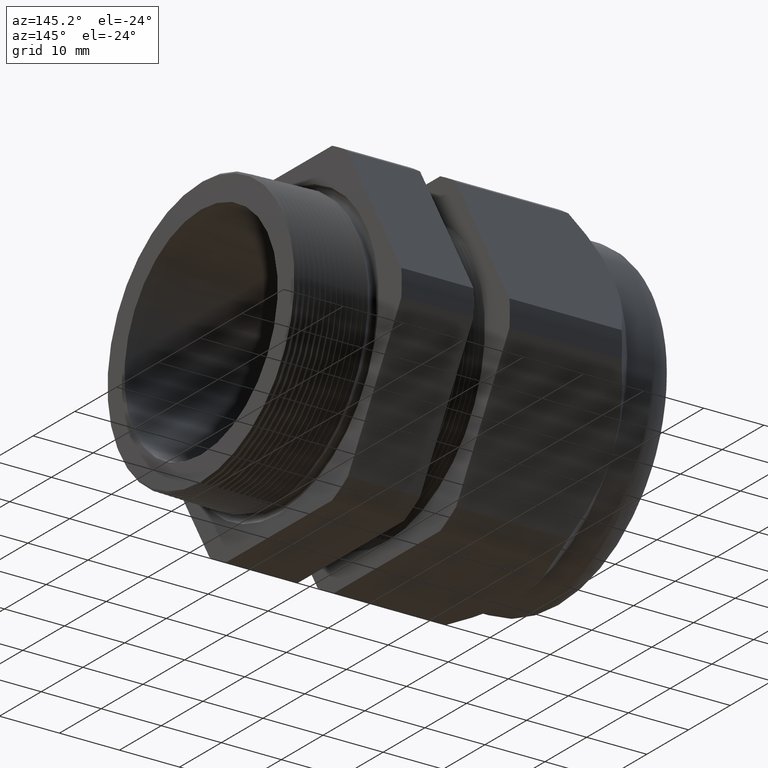
[diagram: clean part render]
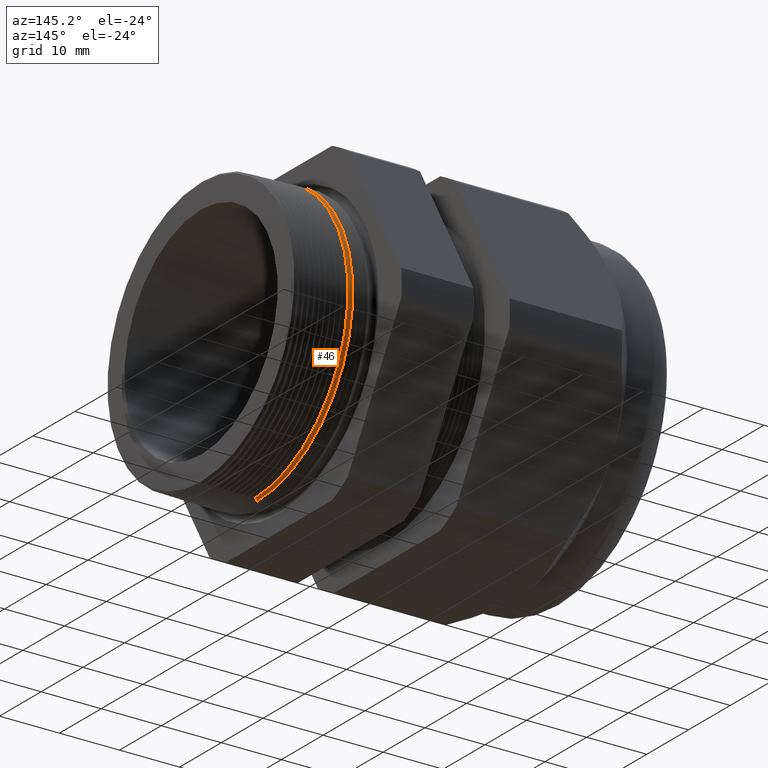
[diagram: same view with one face highlighted and labeled with its STEP entity id]
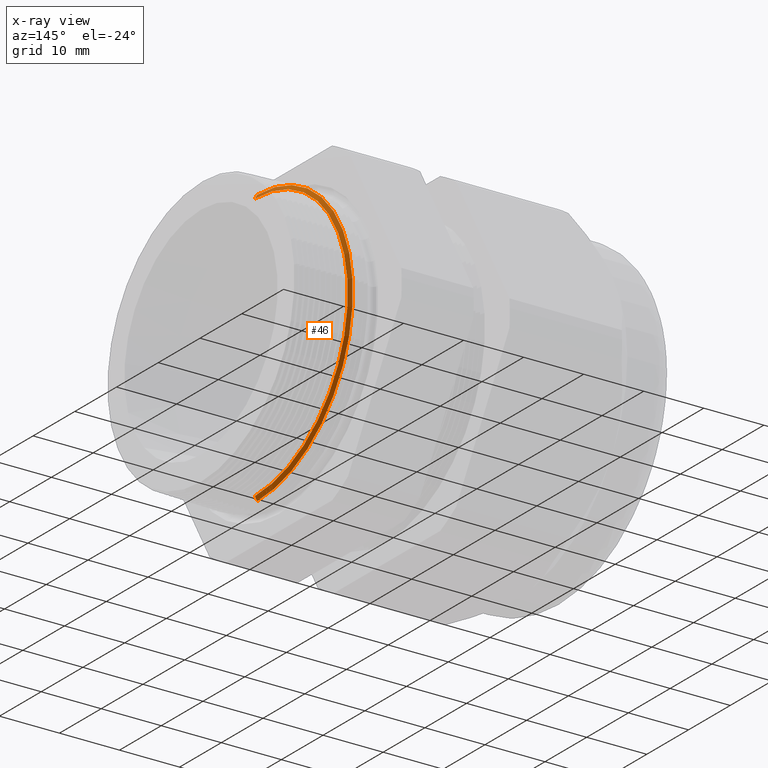
[diagram: x-ray of the same camera — body ghosted, the highlighted face saturated]
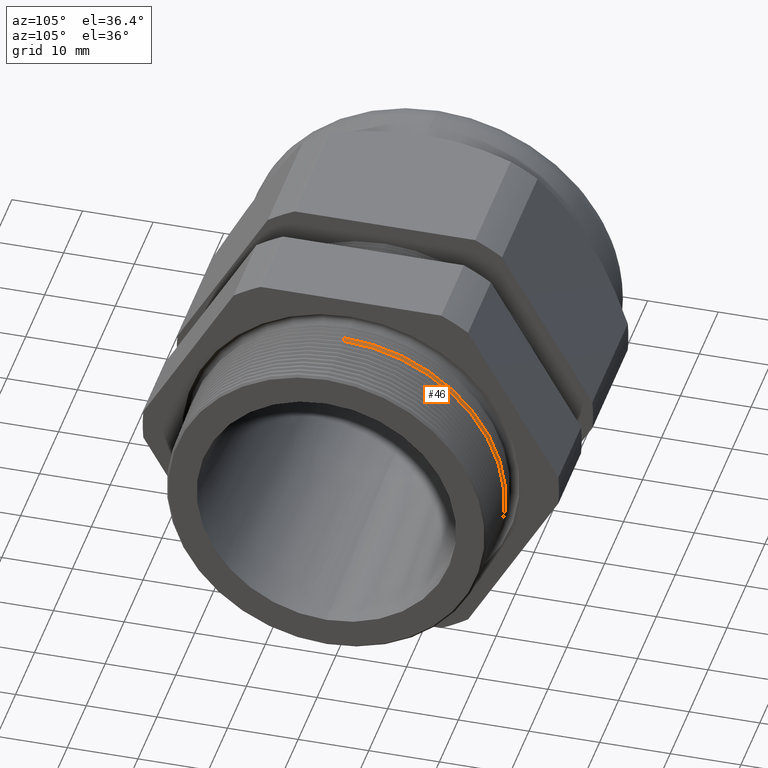
[diagram: same view with one face highlighted and labeled with its STEP entity id]
A machine part, auxiliary view. The second image highlights one B-rep face of the part: STEP entity #46.
The next image is the same camera in x-ray: the body ghosted, the highlighted face saturated — about 5% of this face is hidden behind the body in this view.
A second angle (auxiliary view) of the same face is appended — the face is thin or edge-on in the first view.
In plain terms, the highlighted conical surface has half-angle 61.5 deg.
Its self-contained STEP definition (entity closure, byte-faithful):
#27 = ORIENTED_EDGE ( 'NONE', *, *, #5457, .F. ) ;
#39 = EDGE_LOOP ( 'NONE', ( #27, #686, #695, #797 ) ) ;
#46 = ADVANCED_FACE ( 'NONE', ( #1625 ), #1624, .T. ) ;
#474 = VERTEX_POINT ( 'NONE', #2503 ) ;
#526 = VERTEX_POINT ( 'NONE', #2644 ) ;
#650 = EDGE_CURVE ( 'NONE', #474, #689, #2859, .T. ) ;
#686 = ORIENTED_EDGE ( 'NONE', *, *, #696, .T. ) ;
#689 = VERTEX_POINT ( 'NONE', #2958 ) ;
#695 = ORIENTED_EDGE ( 'NONE', *, *, #715, .T. ) ;
#696 = EDGE_CURVE ( 'NONE', #5444, #526, #2941, .T. ) ;
#715 = EDGE_CURVE ( 'NONE', #526, #689, #2972, .T. ) ;
#797 = ORIENTED_EDGE ( 'NONE', *, *, #650, .F. ) ;
#1619 = DIRECTION ( 'NONE',  ( 0.0000000000000000000, 0.0000000000000000000, 1.000000000000000000 ) ) ;
#1620 = DIRECTION ( 'NONE',  ( -1.000000000000000000, 0.0000000000000000000, 0.0000000000000000000 ) ) ;
#1621 = CARTESIAN_POINT ( 'NONE',  ( -0.1699999999999999600, 0.0000000000000000000, 0.0000000000000000000 ) ) ;
#1622 = AXIS2_PLACEMENT_3D ( 'NONE', #1621, #1620, #1619 ) ;
#1624 = CONICAL_SURFACE ( 'NONE', #1622, 0.9064393454711852100, 1.073377489976499800 ) ;
#1625 = FACE_OUTER_BOUND ( 'NONE', #39, .T. ) ;
#2503 = CARTESIAN_POINT ( 'NONE',  ( -0.1534707356790752100, 0.0000000000000000000, 0.8759962276773553000 ) ) ;
#2644 = CARTESIAN_POINT ( 'NONE',  ( -0.1679808000774189700, 1.105578611942173600E-016, -0.9027204418406947800 ) ) ;
#2851 = DIRECTION ( 'NONE',  ( -0.4771587602596196200, 0.0000000000000000000, 0.8788171126619591700 ) ) ;
#2852 = VECTOR ( 'NONE', #2851, 39.37007874015748900 ) ;
#2853 = CARTESIAN_POINT ( 'NONE',  ( -0.1699999999999999600, 0.0000000000000000000, 0.9064393454711852100 ) ) ;
#2859 = LINE ( 'NONE', #2853, #2852 ) ;
#2938 = DIRECTION ( 'NONE',  ( -0.4771587602596196200, 1.076240564057387000E-016, -0.8788171126619591700 ) ) ;
#2939 = VECTOR ( 'NONE', #2938, 39.37007874015748900 ) ;
#2940 = CARTESIAN_POINT ( 'NONE',  ( -0.1699999999999999600, 1.110068043052508900E-016, -0.9064393454711852100 ) ) ;
#2941 = LINE ( 'NONE', #2940, #2939 ) ;
#2958 = CARTESIAN_POINT ( 'NONE',  ( -0.1679808000774189700, 0.0000000000000000000, 0.9027204418406947800 ) ) ;
#2964 = DIRECTION ( 'NONE',  ( 0.0000000000000000000, 0.0000000000000000000, 1.000000000000000000 ) ) ;
#2965 = DIRECTION ( 'NONE',  ( 1.000000000000000000, 0.0000000000000000000, 0.0000000000000000000 ) ) ;
#2966 = CARTESIAN_POINT ( 'NONE',  ( -0.1679808000774189700, 0.0000000000000000000, 0.0000000000000000000 ) ) ;
#2967 = AXIS2_PLACEMENT_3D ( 'NONE', #2966, #2965, #2964 ) ;
#2972 = CIRCLE ( 'NONE', #2967, 0.9027204418406947800 ) ;
#4945 = DIRECTION ( 'NONE',  ( 0.0000000000000000000, 0.0000000000000000000, -1.000000000000000000 ) ) ;
#4946 = DIRECTION ( 'NONE',  ( 1.000000000000000000, 0.0000000000000000000, 0.0000000000000000000 ) ) ;
#4947 = CARTESIAN_POINT ( 'NONE',  ( -0.1534707356790752100, 0.0000000000000000000, 0.0000000000000000000 ) ) ;
#4948 = AXIS2_PLACEMENT_3D ( 'NONE', #4947, #4946, #4945 ) ;
#4949 = CIRCLE ( 'NONE', #4948, 0.8759962276773553000 ) ;
#4964 = CARTESIAN_POINT ( 'NONE',  ( -0.1534707356790752100, 1.089149837957660200E-016, -0.8759962276773553000 ) ) ;
#5444 = VERTEX_POINT ( 'NONE', #4964 ) ;
#5457 = EDGE_CURVE ( 'NONE', #5444, #474, #4949, .T. ) ;